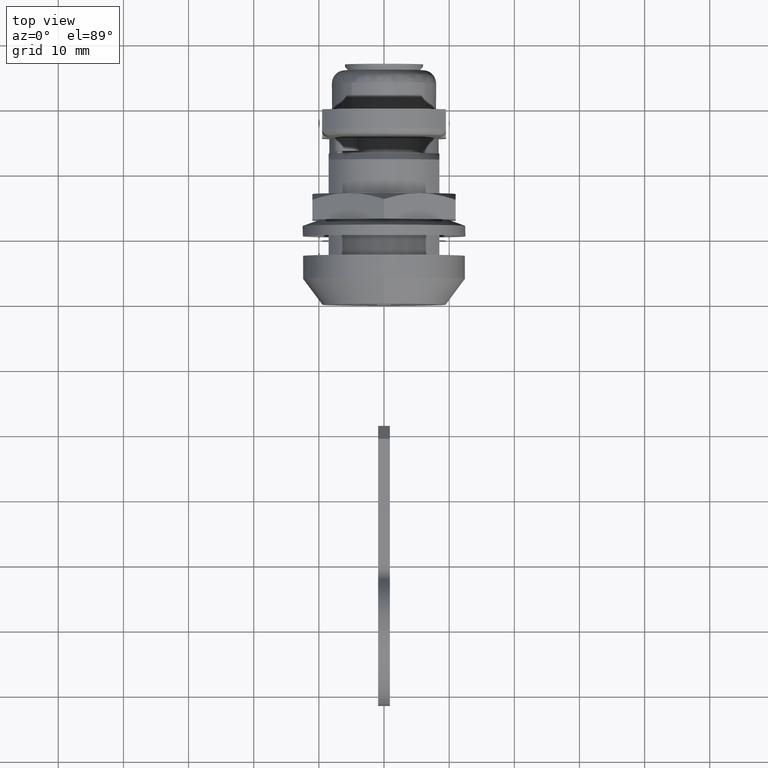
[diagram: clean part render]
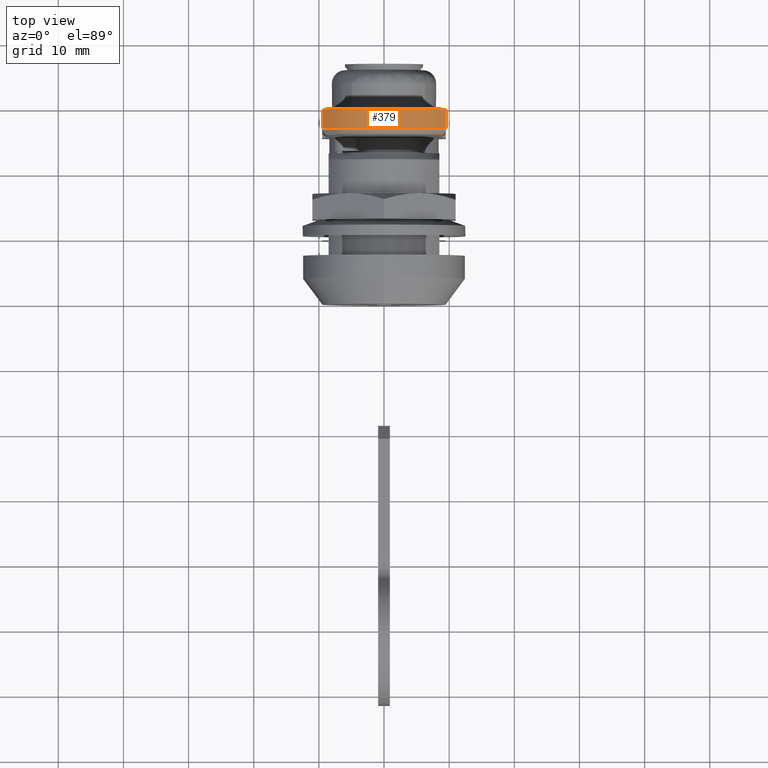
[diagram: same view with one face highlighted and labeled with its STEP entity id]
A machine part, top view. The second image highlights one B-rep face of the part: STEP entity #379.
In plain terms, the highlighted cylindrical surface (partial cylindrical patch) has radius 11.5 mm, axis along (0, -1, 0).
Its self-contained STEP definition (entity closure, byte-faithful):
#379=ADVANCED_FACE('',(#599),#598,.T.);
#598=CYLINDRICAL_SURFACE('',#2044,1.15000000000E+01);
#599=FACE_OUTER_BOUND('',#2045,.T.);
#2041=CARTESIAN_POINT('',(0.00000000000E+00,2.50000000000E+00,2.35000000000E+01));
#2042=DIRECTION('',(0.00000000000E+00,-1.00000000000E+00,-0.00000000000E+00));
#2043=DIRECTION('',(8.26086956522E-01,0.00000000000E+00,-5.63542669427E-01));
#2044=AXIS2_PLACEMENT_3D('',#2041,#2042,#2043);
#2045=EDGE_LOOP('',(#3838,#3839,#3840,#3841));
#3838=ORIENTED_EDGE('',*,*,#4558,.T.);
#3839=ORIENTED_EDGE('',*,*,#4546,.T.);
#3840=ORIENTED_EDGE('',*,*,#4555,.F.);
#3841=ORIENTED_EDGE('',*,*,#4536,.T.);
#4536=EDGE_CURVE('',#5008,#5022,#5029,.T.);
#4546=EDGE_CURVE('',#5098,#5091,#5099,.T.);
#4555=EDGE_CURVE('',#5008,#5091,#5154,.T.);
#4558=EDGE_CURVE('',#5022,#5098,#5173,.T.);
#5008=VERTEX_POINT('',#7406);
#5022=VERTEX_POINT('',#7415);
#5029=CIRCLE('',#7422,1.15000000000E+01);
#5091=VERTEX_POINT('',#7459);
#5098=VERTEX_POINT('',#7470);
#5099=CIRCLE('',#7474,1.15000000000E+01);
#5154=LINE('',#7508,#7509);
#5173=LINE('',#7518,#7519);
#7406=CARTESIAN_POINT('',(9.50000000000E+00,4.00000000000E+00,2.99807406984E+01));
#7415=CARTESIAN_POINT('',(-9.50000000000E+00,4.00000000000E+00,2.99807406984E+01));
#7419=CARTESIAN_POINT('',(0.00000000000E+00,4.00000000000E+00,2.35000000000E+01));
#7420=DIRECTION('',(0.00000000000E+00,-1.00000000000E+00,0.00000000000E+00));
#7421=DIRECTION('',(-8.26086956522E-01,-0.00000000000E+00,-5.63542669426E-01));
#7422=AXIS2_PLACEMENT_3D('',#7419,#7420,#7421);
#7459=CARTESIAN_POINT('',(9.50000000000E+00,1.00000000000E+00,2.99807406984E+01));
#7470=CARTESIAN_POINT('',(-9.50000000000E+00,1.00000000000E+00,2.99807406984E+01));
#7471=CARTESIAN_POINT('',(0.00000000000E+00,1.00000000000E+00,2.35000000000E+01));
#7472=DIRECTION('',(0.00000000000E+00,1.00000000000E+00,0.00000000000E+00));
#7473=DIRECTION('',(8.26086956522E-01,-0.00000000000E+00,-5.63542669426E-01));
#7474=AXIS2_PLACEMENT_3D('',#7471,#7472,#7473);
#7508=CARTESIAN_POINT('',(9.50000000000E+00,4.00000000000E+00,2.99807406984E+01));
#7509=VECTOR('',#7510,3.00000000000E+00);
#7510=DIRECTION('',(0.00000000000E+00,-1.00000000000E+00,0.00000000000E+00));
#7518=CARTESIAN_POINT('',(-9.50000000000E+00,4.00000000000E+00,2.99807406984E+01));
#7519=VECTOR('',#7520,3.00000000000E+00);
#7520=DIRECTION('',(0.00000000000E+00,-1.00000000000E+00,0.00000000000E+00));